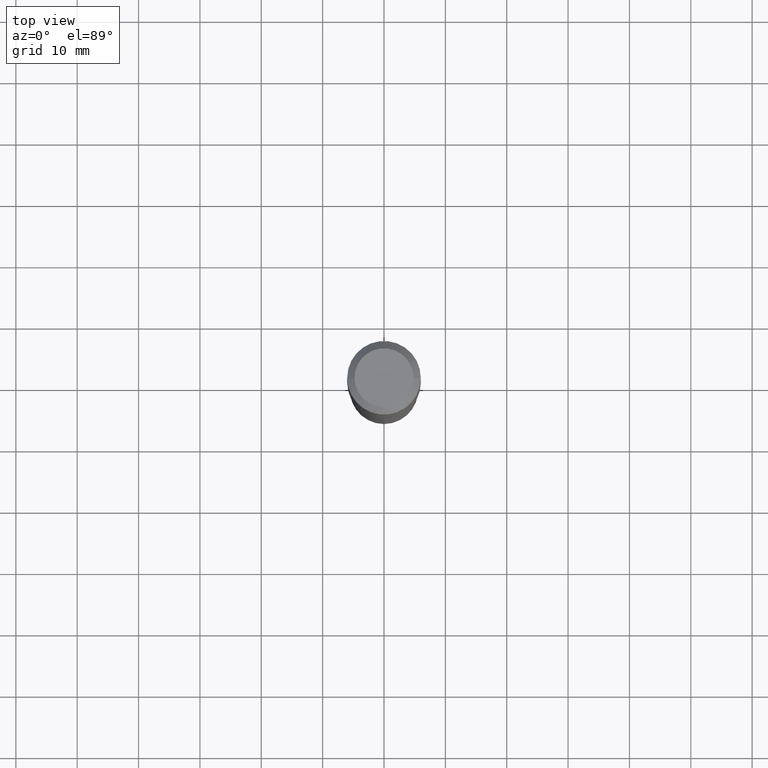
[diagram: clean part render]
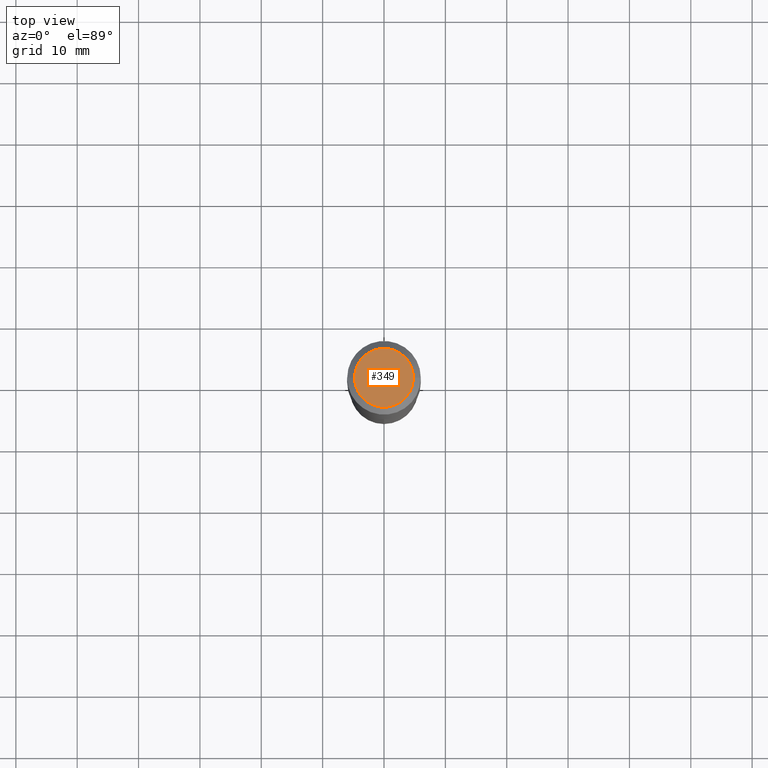
[diagram: same view with one face highlighted and labeled with its STEP entity id]
A machine part, top view. The second image highlights one B-rep face of the part: STEP entity #349.
In plain terms, the highlighted planar face has unit normal (0, -0, -1).
Its self-contained STEP definition (entity closure, byte-faithful):
#58 = DIRECTION ( 'NONE',  ( -1.000000000000000000, 6.982962677686265922E-15, -4.876176775795935793E-29 ) ) ;
#60 = AXIS2_PLACEMENT_3D ( 'NONE', #324, #403, #438 ) ;
#65 = FACE_OUTER_BOUND ( 'NONE', #449, .T. ) ;
#134 = AXIS2_PLACEMENT_3D ( 'NONE', #166, #281, #247 ) ;
#154 = EDGE_CURVE ( 'NONE', #453, #237, #392, .T. ) ;
#166 = CARTESIAN_POINT ( 'NONE',  ( -9.427742298522546243E-47, 1.346031739168365344E-32, 3.855188123715862256E-18 ) ) ;
#188 = ORIENTED_EDGE ( 'NONE', *, *, #232, .T. ) ;
#191 = CARTESIAN_POINT ( 'NONE',  ( -0.1889600000000000168, 1.401969416799070942E-15, 3.855188123706346622E-18 ) ) ;
#232 = EDGE_CURVE ( 'NONE', #237, #453, #279, .T. ) ;
#237 = VERTEX_POINT ( 'NONE', #363 ) ;
#247 = DIRECTION ( 'NONE',  ( 1.000000000000000000, -6.982962677686266711E-15, 4.876185090822587894E-29 ) ) ;
#254 = CARTESIAN_POINT ( 'NONE',  ( -4.713871149261273121E-47, 6.730158695841826722E-33, 1.927594061857931128E-18 ) ) ;
#279 = CIRCLE ( 'NONE', #60, 0.1889600000000000168 ) ;
#281 = DIRECTION ( 'NONE',  ( -2.445468806185136597E-29, 3.491481338843145583E-15, 1.000000000000000000 ) ) ;
#324 = CARTESIAN_POINT ( 'NONE',  ( -9.427742298522546243E-47, 1.346031739168365344E-32, 3.855188123715862256E-18 ) ) ;
#349 = ADVANCED_FACE ( 'NONE', ( #65 ), #481, .F. ) ;
#363 = CARTESIAN_POINT ( 'NONE',  ( 0.1889600000000000168, -1.540873453589747738E-15, 3.855188123725863225E-18 ) ) ;
#368 = DIRECTION ( 'NONE',  ( 2.438088387897960049E-29, -3.491481338843145188E-15, -1.000000000000000000 ) ) ;
#392 = CIRCLE ( 'NONE', #134, 0.1889600000000000168 ) ;
#401 = AXIS2_PLACEMENT_3D ( 'NONE', #254, #368, #58 ) ;
#403 = DIRECTION ( 'NONE',  ( -2.445468806185136597E-29, 3.491481338843145583E-15, 1.000000000000000000 ) ) ;
#438 = DIRECTION ( 'NONE',  ( 1.000000000000000000, -6.982962677686266711E-15, 4.876185090822587894E-29 ) ) ;
#449 = EDGE_LOOP ( 'NONE', ( #461, #188 ) ) ;
#453 = VERTEX_POINT ( 'NONE', #191 ) ;
#461 = ORIENTED_EDGE ( 'NONE', *, *, #154, .T. ) ;
#481 = PLANE ( 'NONE',  #401 ) ;